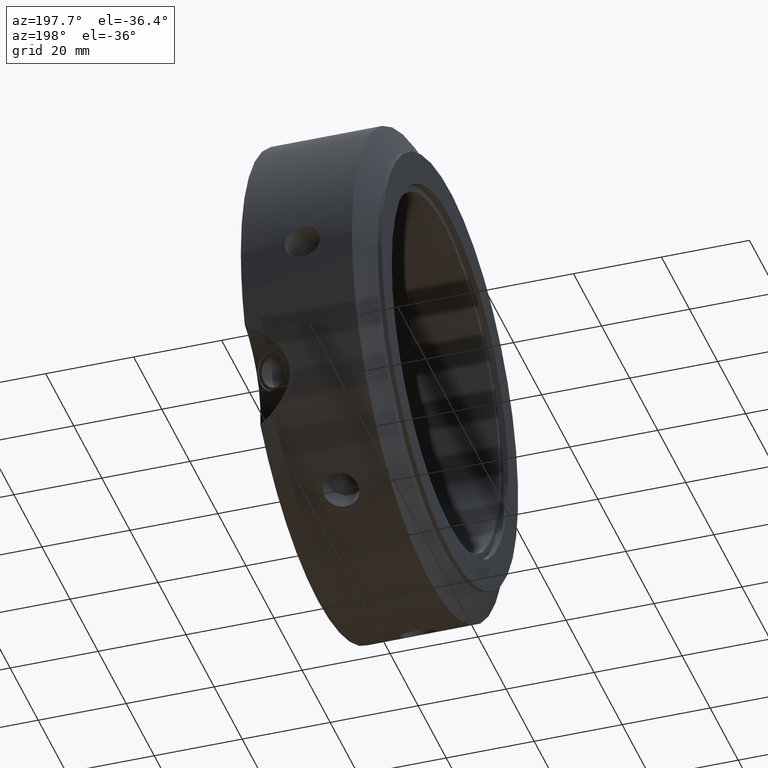
[diagram: clean part render]
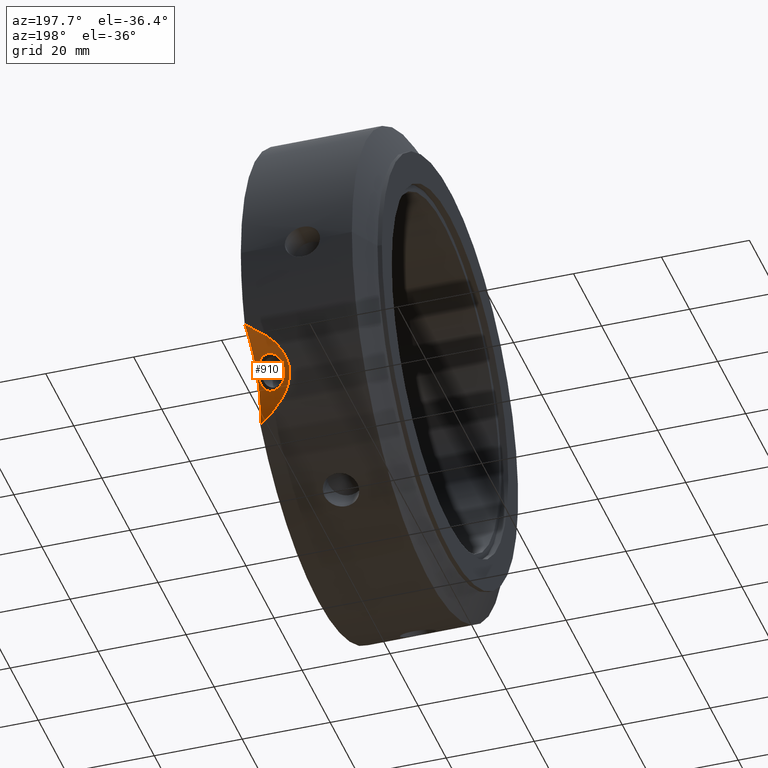
[diagram: same view with one face highlighted and labeled with its STEP entity id]
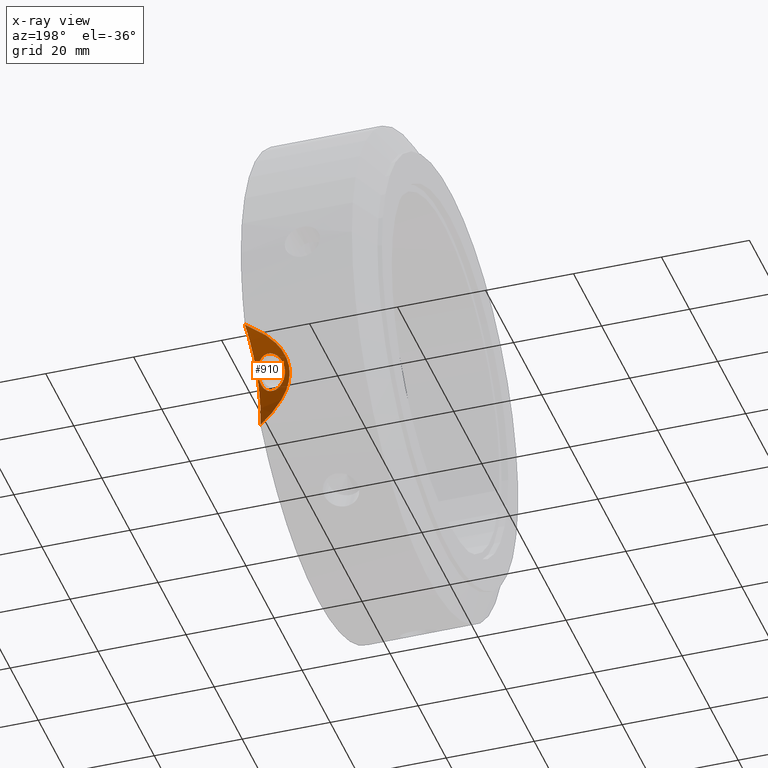
[diagram: x-ray of the same camera — body ghosted, the highlighted face saturated]
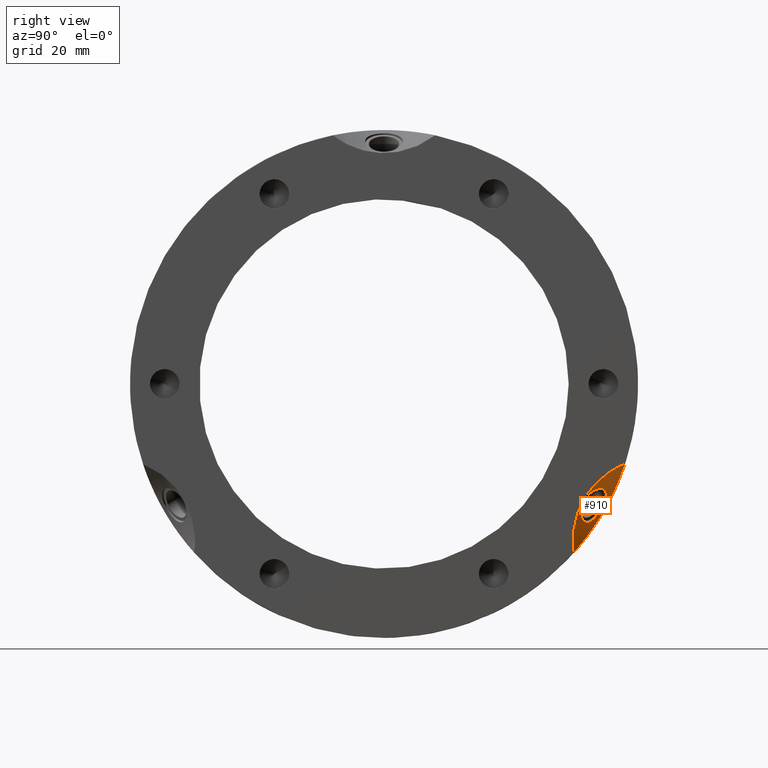
[diagram: same view with one face highlighted and labeled with its STEP entity id]
A machine part, auxiliary view. The second image highlights one B-rep face of the part: STEP entity #910.
The next image is the same camera in x-ray: the body ghosted, the highlighted face saturated — about 0% of this face is hidden behind the body in this view.
A second angle (right view) of the same face is appended — the face is thin or edge-on in the first view.
In plain terms, the highlighted cylindrical surface (partial cylindrical patch) has radius 20 mm, axis along (-0.866, 0.433, -0.25).
Its self-contained STEP definition (entity closure, byte-faithful):
#814=CARTESIAN_POINT('',(26.363015363542562,47.594523045313778,-22.744438484808853));
#815=VERTEX_POINT('',#814);
#816=CARTESIAN_POINT('',(26.363015363542562,47.594523045313785,-22.744438484808857));
#817=CARTESIAN_POINT('',(26.8102302530415,47.370915600564309,-22.615338666389949));
#818=CARTESIAN_POINT('',(27.275080743859551,47.064184883837505,-22.557762651733618));
#819=CARTESIAN_POINT('',(28.109119982337887,46.356956944463931,-22.633109934266326));
#820=CARTESIAN_POINT('',(28.479042583622693,45.957372408167672,-22.766471517478038));
#821=CARTESIAN_POINT('',(29.054904298417767,45.19982801288787,-23.167864729786523));
#822=CARTESIAN_POINT('',(29.299739556835171,44.790929293046169,-23.463014658604912));
#823=CARTESIAN_POINT('',(29.622718769421756,44.045010539088935,-24.19829895040678));
#824=CARTESIAN_POINT('',(29.701339250127184,43.708784199772722,-24.639028757600734));
#825=CARTESIAN_POINT('',(29.701339250127184,43.192416928543906,-25.533403106734738));
#826=CARTESIAN_POINT('',(29.622718769421756,42.978846888967027,-26.044948561601));
#827=CARTESIAN_POINT('',(29.299739556835171,42.715031390241577,-27.058575297588146));
#828=CARTESIAN_POINT('',(29.054904298417767,42.663873413880538,-27.560266940955181));
#829=CARTESIAN_POINT('',(28.479042583622693,42.69502889275465,-28.417016237916254));
#830=CARTESIAN_POINT('',(28.109119982337887,42.779326641952515,-28.829747388914097));
#831=CARTESIAN_POINT('',(27.275080743859551,43.067687950859863,-29.479898391944083));
#832=CARTESIAN_POINT('',(26.810230253041503,43.270915600564308,-29.716746977422346));
#833=CARTESIAN_POINT('',(25.915800474043618,43.718130490063238,-29.974946614260169));
#834=CARTESIAN_POINT('',(25.428396045418964,43.991030300080148,-30.012990345820597));
#835=CARTESIAN_POINT('',(24.51358180203934,44.577095732101796,-29.867689857052568));
#836=CARTESIAN_POINT('',(24.086679358649882,44.891210505241048,-29.684982283074586));
#837=CARTESIAN_POINT('',(23.404398564175388,45.489126281001731,-29.191427444316361));
#838=CARTESIAN_POINT('',(23.103110563226355,45.81334588704599,-28.84738800635229));
#839=CARTESIAN_POINT('',(22.700569329317169,46.439921609019322,-28.043200982908587));
#840=CARTESIAN_POINT('',(22.59993093909479,46.743121084060107,-27.583403106734742));
#841=CARTESIAN_POINT('',(22.59993093909479,47.259488355288909,-26.689028757600735));
#842=CARTESIAN_POINT('',(22.700569329317169,47.50608525914123,-26.196551371714403));
#843=CARTESIAN_POINT('',(23.103110563226355,47.889243789850589,-25.251827367369071));
#844=CARTESIAN_POINT('',(23.404398564175388,48.025080880009057,-24.799025233147709));
#845=CARTESIAN_POINT('',(24.086679358649882,48.153554020654077,-24.034437562636374));
#846=CARTESIAN_POINT('',(24.513581802039344,48.154726034613191,-23.67105240240479));
#847=CARTESIAN_POINT('',(25.428396045418964,47.987527233057783,-23.090854605610129));
#848=CARTESIAN_POINT('',(25.915800474043618,47.818130490063247,-22.873538303227772));
#849=CARTESIAN_POINT('',(26.363015363542562,47.594523045313778,-22.744438484808857));
#850=B_SPLINE_CURVE_WITH_KNOTS('',3,(#816,#817,#818,#819,#820,#821,#822,#823,#824,#825,#826,#827,#828,#829,#830,#831,#832,#833,#834,#835,#836,#837,#838,#839,#840,#841,#842,#843,#844,#845,#846,#847,#848,#849),.UNSPECIFIED.,.T.,.U.,(4,2,2,2,2,2,2,2,2,2,2,2,2,2,2,2,4),(0.0,0.154919782102695,0.30983956420539,0.464749745574033,0.619659926942675,0.774570108311318,0.929480289679961,1.084400071782656,1.239319853885351,1.394239635988046,1.549159418090741,1.704069599459384,1.858979780828026,2.013889962196669,2.168800143565312,2.323719925668007,2.478639707770702),.UNSPECIFIED.);
#851=EDGE_CURVE('',#815,#815,#850,.T.);
#868=CARTESIAN_POINT('',(33.321507575751184,61.640516401346318,-35.588168737304883));
#869=DIRECTION('',(-0.866025403784438,0.43301270189222,-0.250000000000001));
#870=DIRECTION('',(-0.500000000000001,-0.75,0.43301270189222));
#871=AXIS2_PLACEMENT_3D('',#868,#869,#870);
#872=CYLINDRICAL_SURFACE('',#871,20.000000000000007);
#873=CARTESIAN_POINT('',(29.999999999999986,41.111705432493409,-36.535293572542855));
#874=VERTEX_POINT('',#873);
#875=CARTESIAN_POINT('',(29.999999999999993,52.196345084791119,-17.336134511170648));
#876=VERTEX_POINT('',#875);
#877=CARTESIAN_POINT('',(29.999999999999986,63.301270189221924,-36.547005383792552));
#878=DIRECTION('',(-1.0,0.0,0.0));
#879=DIRECTION('',(0.0,-0.866025403784438,0.5));
#880=AXIS2_PLACEMENT_3D('',#877,#878,#879);
#881=ELLIPSE('',#880,23.094010767585047,20.000000000000007);
#882=EDGE_CURVE('',#874,#876,#881,.T.);
#883=ORIENTED_EDGE('',*,*,#882,.F.);
#884=CARTESIAN_POINT('',(29.999999999999986,52.196345084791119,-17.336134511170638));
#885=CARTESIAN_POINT('',(29.060007141965404,52.017152142314025,-17.875655974635688));
#886=CARTESIAN_POINT('',(28.15728516807912,51.819215460173325,-18.444034927937331));
#887=CARTESIAN_POINT('',(25.807597105333112,51.206792006965358,-20.103006443209136));
#888=CARTESIAN_POINT('',(24.291894560249723,50.694338114816787,-21.391567846151979));
#889=CARTESIAN_POINT('',(22.612611692154978,49.706703451794908,-23.555730224074331));
#890=CARTESIAN_POINT('',(22.150845850446295,49.34067544891721,-24.316105741964392));
#891=CARTESIAN_POINT('',(21.514154564410532,48.537047733110093,-25.883010830963805));
#892=CARTESIAN_POINT('',(21.33974596215559,48.099252846583553,-26.689650263615334));
#893=CARTESIAN_POINT('',(21.33974596215559,47.163541569704677,-28.310349736384719));
#894=CARTESIAN_POINT('',(21.514154564410543,46.683868772597449,-29.092810946089386));
#895=CARTESIAN_POINT('',(22.150845850446309,45.728703018108391,-30.572225507663305));
#896=CARTESIAN_POINT('',(22.612611692154971,45.253212504638697,-31.269402815596923));
#897=CARTESIAN_POINT('',(24.291894560249716,43.872810238954344,-33.206800712393125));
#898=CARTESIAN_POINT('',(25.807597105333095,43.013110275744005,-34.294879502733423));
#899=CARTESIAN_POINT('',(28.157285168079103,41.882610525967856,-35.654739528720818));
#900=CARTESIAN_POINT('',(29.060007141965407,41.489348254502552,-36.110347200446284));
#901=CARTESIAN_POINT('',(29.999999999999993,41.111705432493409,-36.535293572542862));
#902=B_SPLINE_CURVE_WITH_KNOTS('',3,(#884,#885,#886,#887,#888,#889,#890,#891,#892,#893,#894,#895,#896,#897,#898,#899,#900,#901),.UNSPECIFIED.,.F.,.U.,(4,2,2,2,2,2,2,2,4),(2.33418702633611,2.65499915472999,3.216425920857322,3.497139303920988,3.777852686984654,4.05856607004832,4.339279453111987,4.900706219239318,5.221518347633199),.UNSPECIFIED.);
#903=EDGE_CURVE('',#876,#874,#902,.T.);
#904=ORIENTED_EDGE('',*,*,#903,.F.);
#905=EDGE_LOOP('',(#883,#904));
#906=FACE_OUTER_BOUND('',#905,.T.);
#907=ORIENTED_EDGE('',*,*,#851,.F.);
#908=EDGE_LOOP('',(#907));
#909=FACE_BOUND('',#908,.T.);
#910=ADVANCED_FACE('',(#906,#909),#872,.F.);